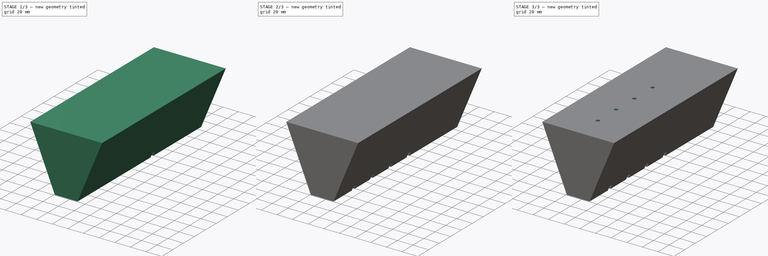
[diagram: build sequence overview — one tinted view per stage of 3, left to right]
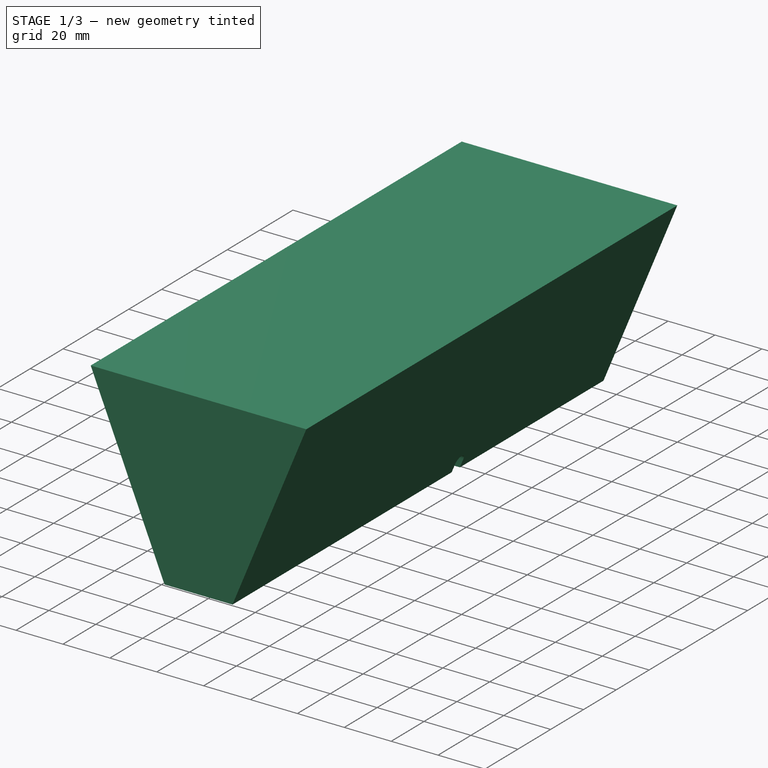
[diagram: stage 1 of 3 — iso view after this stage's code; geometry added in this stage tinted green]
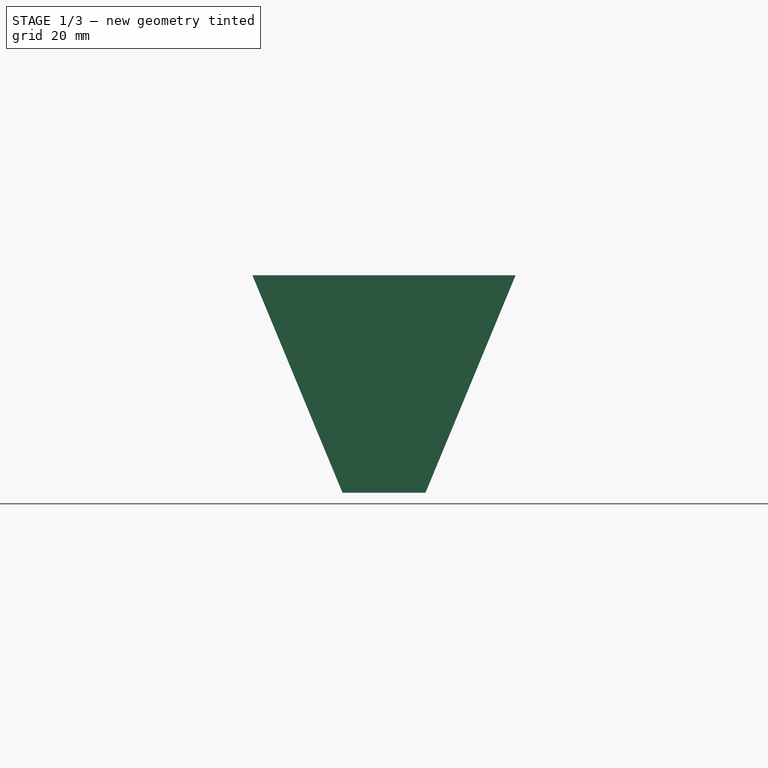
[diagram: stage 1 of 3 — front view after this stage's code; geometry added in this stage tinted green]
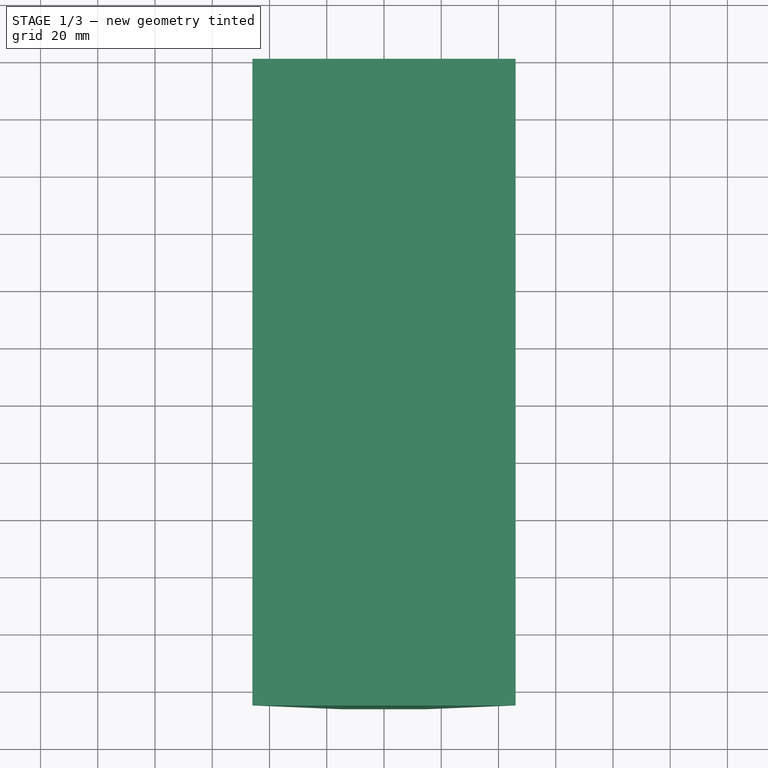
[diagram: stage 1 of 3 — top view after this stage's code; geometry added in this stage tinted green]
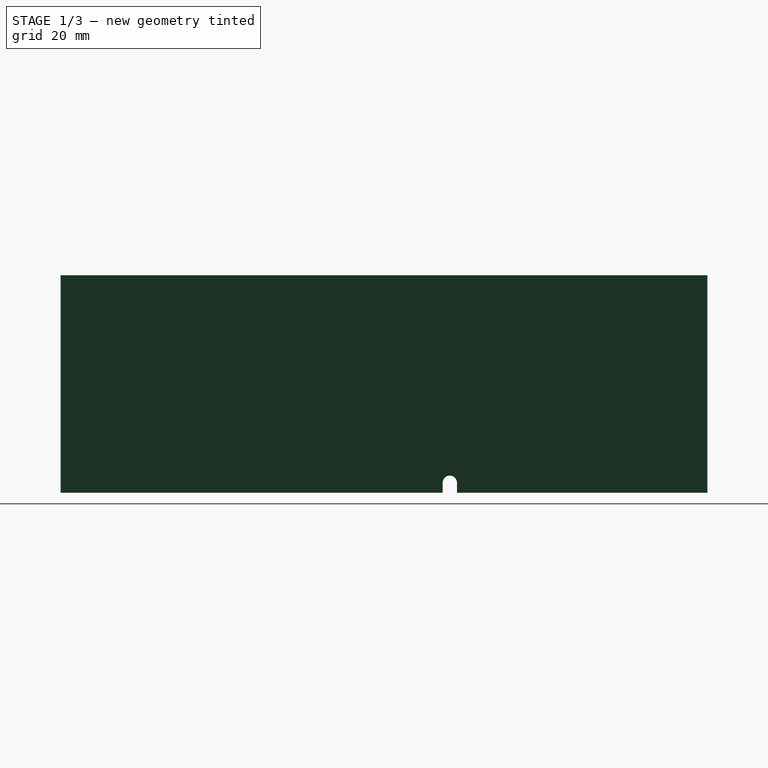
[diagram: stage 1 of 3 — right view after this stage's code; geometry added in this stage tinted green]
FCSTD DOCUMENT  (FreeCAD 1.0R39319 (Git))
Label: OCT-CHBRK-AA
License: All rights reserved
LicenseURL: https://en.wikipedia.org/wiki/All_rights_reserved
objects: Sketcher::SketchObject×3, PartDesign::LinearPattern×2, PartDesign::Body×2, App::Link×1, PartDesign::Pad×1, PartDesign::Plane×1, PartDesign::Pocket×1, PartDesign::FeatureBase×1, PartDesign::Hole×1
note: 24 computed .brp shape members not serialized (recipe doc carries the construction recipe); baked Part::Feature solids carry a one-line shape summary decoded from their .brp
EXTERNAL_REF file=../master.FCStd obj=Spreadsheet

FEATURE [App::Link] Link  label="dims"
  LinkedObject = -> <external ../master.FCStd>#Spreadsheet
FEATURE [Sketcher::SketchObject] Sketch
  ArcFitTolerance = 1e-06
  AttachmentSupport = -> [XZ_Plane]
  FullyConstrained = true
  MakeInternals = false
  MapMode = 5
  Placement = pos=(0,0,0) rot=(1,0,0;1.5708rad)
  expr: Constraints[31] = <<dims>>.iwChamber / 2
  expr: Constraints[32] = <<dims>>.owChamber
  sketch-geometry (13):
    g0: LineSegment StartX=-14.4975 StartY=35 StartZ=0 EndX=14.4975 EndY=35 EndZ=0
    g1: LineSegment StartX=14.4975 StartY=35 StartZ=0 EndX=45.9777 EndY=111 EndZ=0
    g2: LineSegment StartX=-45.9777 StartY=111 StartZ=0 EndX=-14.4975 EndY=35 EndZ=0
    g3: LineSegment [constr] StartX=-45.9777 StartY=111 StartZ=0 EndX=-111 EndY=45.9777 EndZ=0
    g4: LineSegment [constr] StartX=-111 StartY=45.9777 StartZ=0 EndX=-111 EndY=-45.9777 EndZ=0
    g5: LineSegment [constr] StartX=-111 StartY=-45.9777 StartZ=0 EndX=-45.9777 EndY=-111 EndZ=0
    g6: LineSegment [constr] StartX=-45.9777 StartY=-111 StartZ=0 EndX=45.9777 EndY=-111 EndZ=0
    g7: LineSegment [constr] StartX=45.9777 StartY=-111 StartZ=0 EndX=111 EndY=-45.9777 EndZ=0
    g8: LineSegment [constr] StartX=111 StartY=-45.9777 StartZ=0 EndX=111 EndY=45.9777 EndZ=0
    g9: LineSegment [constr] StartX=111 StartY=45.9777 StartZ=0 EndX=45.9777 EndY=111 EndZ=0
    g10: LineSegment StartX=45.9777 StartY=111 StartZ=0 EndX=-45.9777 EndY=111 EndZ=0
    g11: Circle [constr] CenterX=0 CenterY=0 CenterZ=0 NormalX=0 NormalY=0 NormalZ=1 AngleXU=0 Radius=120.146
    g12: LineSegment [constr] StartX=0 StartY=0 StartZ=0 EndX=14.4975 EndY=35 EndZ=0
  constraints (30):
    c: Horizontal(g0)
    c: Coincident(g0,g1)
    c: Coincident(g2,g0)
    c: Coincident(g3,g4)
    c: Coincident(g4,g5)
    c: Coincident(g5,g6)
    c: Coincident(g6,g7)
    c: Coincident(g7,g8)
    c: Coincident(g8,g9)
    c: Coincident(g9,g10)
    c: Coincident(g10,g3)
    c: Equal(g3, g4-g10) x7
    c: PointOnObject(g3,g11)
    c: PointOnObject(g4,g11)
    c: PointOnObject(g5,g11)
    c: PointOnObject(g6,g11)
    c: PointOnObject(g7,g11)
    c: PointOnObject(g8,g11)
    c: PointOnObject(g9,g11)
    c: PointOnObject(g10,g11)
    c: Coincident(g11,g-1)
    c: Horizontal(g10)
    c: Coincident(g1,g9)
    c: Coincident(g2,g3)
    c: Equal(g1,g2)
    c: DistanceY(g11,g0) = 35
    c: DistanceY(g5,g2) = 222
    c: Coincident(g12,g11)
    c: Coincident(g12,g0)
    c: Parallel(g12,g1)
FEATURE [PartDesign::Pad] Pad
  Direction = (0,-1,2e-16)
  Length = 226
  Length2 = 10
  Placement = pos=(0,0,0) rot=(1,0,0;1.5708rad)
  Profile = -> Sketch
  ReferenceAxis = -> Sketch [N_Axis]
  Refine = true
  Suppressed = false
  Type = 0
  expr: Length = <<dims>>.hcWall
FEATURE [PartDesign::Plane] DatumPlane  label="inner wall face"
  AttachmentOffset = pos=(0,0,35) rot=(0,0,1;0rad)
  AttachmentSupport = -> [XY_Plane001]
  Length = 60
  MapMode = 5
  Placement = pos=(0,0,35) rot=(0,0,1;0rad)
  ResizeMode = 0
  Width = 60
  expr: .AttachmentOffset.Base.z = <<dims>>.iwChamber / 2
FEATURE [Sketcher::SketchObject] Sketch001
  ArcFitTolerance = 1e-06
  AttachmentSupport = -> [DatumPlane]
  FullyConstrained = true
  MakeInternals = false
  MapMode = 5
  Placement = pos=(0,0,35) rot=(0,0,1;0rad)
  sketch-geometry (1):
    g0: Circle CenterX=0 CenterY=-90 CenterZ=0 NormalX=0 NormalY=0 NormalZ=1 AngleXU=0 Radius=2
  constraints (3):
    c: PointOnObject(g0,g-2)
    c: DistanceY(g0,g-1) = 90
    c: Diameter(g0) = 4
FEATURE [Sketcher::SketchObject] Sketch003
  ArcFitTolerance = 1e-06
  AttachmentSupport = -> [YZ_Plane]
  FullyConstrained = true
  MakeInternals = false
  MapMode = 5
  Placement = pos=(0,0,0) rot=(0.57735,0.57735,0.57735;2.0944rad)
  expr: Constraints[18] = <<dims>>.iwChamber / 2
  sketch-geometry (7):
    g0: ArcOfCircle CenterX=-90 CenterY=38.5 CenterZ=0 NormalX=0 NormalY=0 NormalZ=1 AngleXU=0 Radius=2.5 StartAngle=-8.58e-13 EndAngle=3.14159
    g1: LineSegment StartX=-92.5 StartY=38.5 StartZ=0 EndX=-92.5 EndY=35 EndZ=0
    g2: LineSegment StartX=-87.5 StartY=38.5 StartZ=0 EndX=-87.5 EndY=35 EndZ=0
    g3: LineSegment StartX=-87.5 StartY=35 StartZ=0 EndX=-92.5 EndY=35 EndZ=0
    g4: Circle [constr] CenterX=-90 CenterY=38.5 CenterZ=0 NormalX=0 NormalY=0 NormalZ=1 AngleXU=0 Radius=2.5
    g5: LineSegment [constr] StartX=-90 StartY=35 StartZ=0 EndX=-90 EndY=36 EndZ=0
    g6: LineSegment [constr] StartX=-90 StartY=38.5 StartZ=0 EndX=0 EndY=38.5 EndZ=0
  constraints (19):
    c: Coincident(g3,g2)
    c: Coincident(g3,g1)
    c: Horizontal(g3)
    c: Tangent(g2,g0) = 1.5708
    c: Tangent(g1,g0) = -1.5708
    c: Vertical(g1)
    c: Vertical(g2)
    c: Coincident(g4,g0)
    c: Equal(g4,g0)
    c: Symmetric(g3,g3,g5)
    c: PointOnObject(g5,g4)
    c: Vertical(g5)
    c: DistanceY(g5,g5) = 1
    c: Diameter(g4) = 5
    c: Coincident(g6,g0)
    c: PointOnObject(g6,g-2)
    c: Horizontal(g6)
    c: DistanceX(g6,g6) = 90
    c: DistanceY(g-1,g2) = 35
FEATURE [PartDesign::Pocket] Pocket001
  BaseFeature = -> Pad
  Direction = (-1,0,0)
  Length = 5
  Length2 = 5
  Midplane = true
  Placement = pos=(0,0,0) rot=(1,0,0;1.5708rad)
  Profile = -> Sketch003
  ReferenceAxis = -> Sketch003 [N_Axis]
  Refine = true
  Suppressed = false
  Type = 1
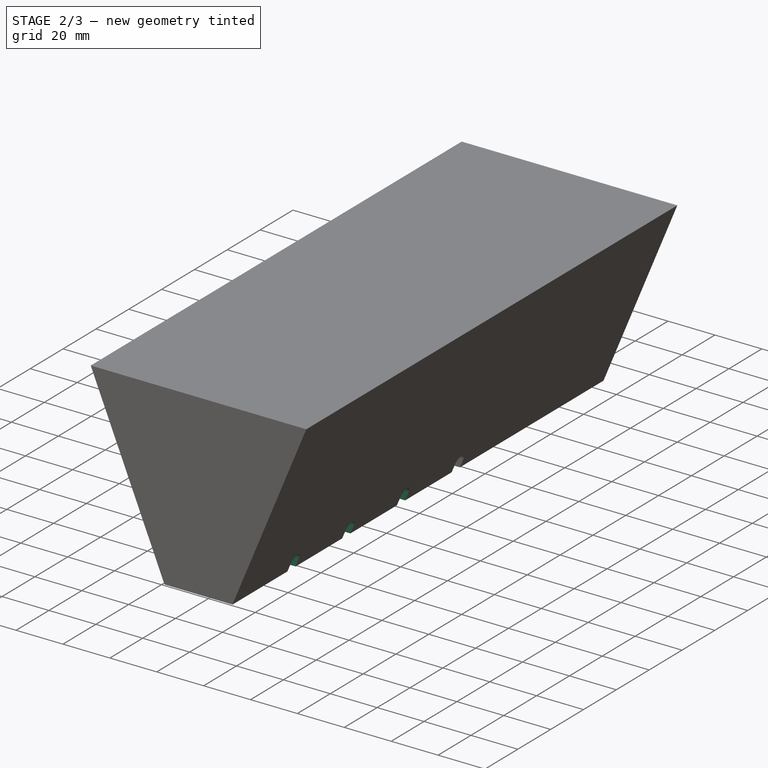
[diagram: stage 2 of 3 — iso view after this stage's code; geometry added in this stage tinted green]
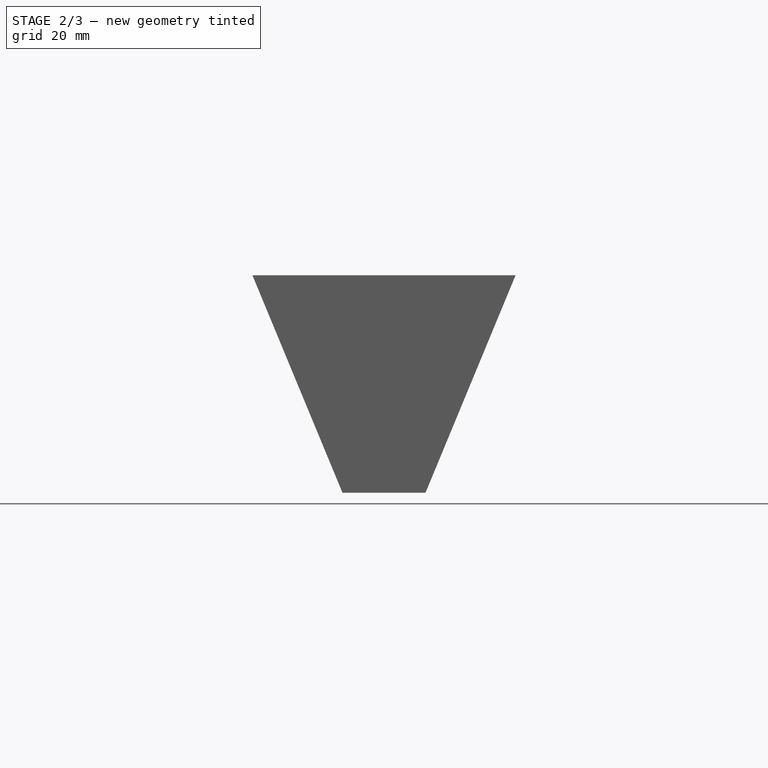
[diagram: stage 2 of 3 — front view after this stage's code; geometry added in this stage tinted green]
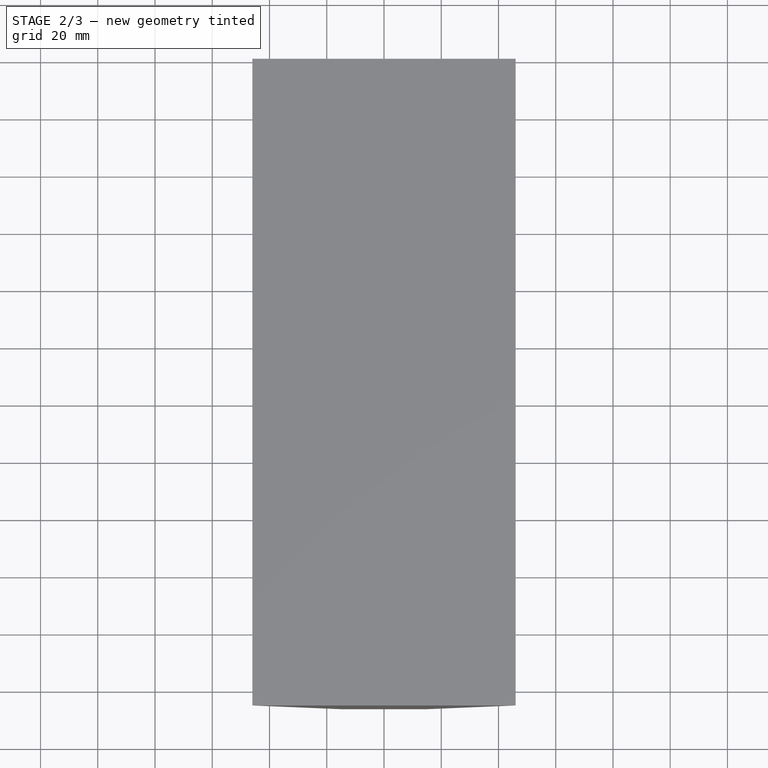
[diagram: stage 2 of 3 — top view after this stage's code; geometry added in this stage tinted green]
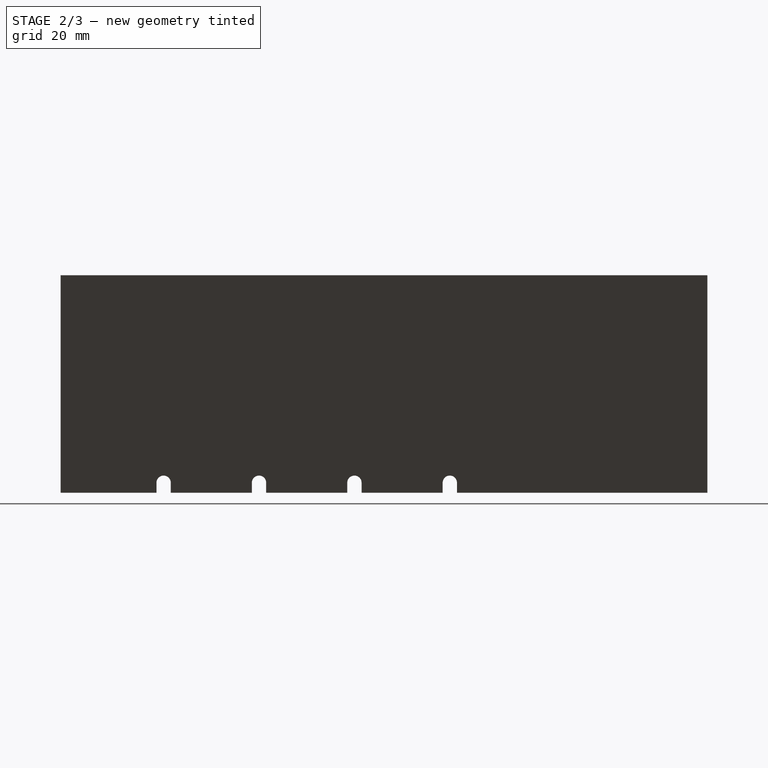
[diagram: stage 2 of 3 — right view after this stage's code; geometry added in this stage tinted green]
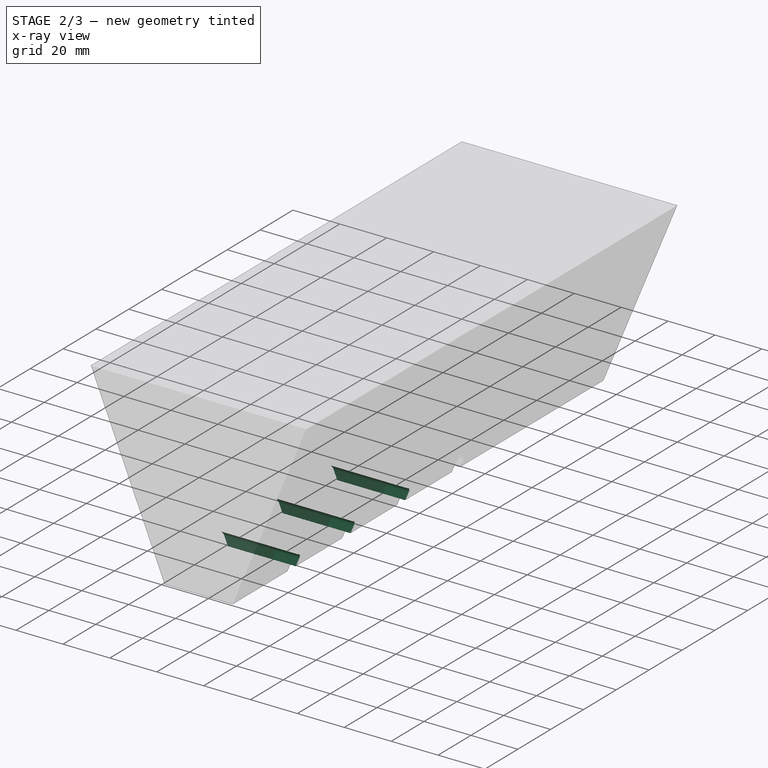
[diagram: stage 2 of 3 — x-ray composite at the iso view; earlier geometry ghosted, this stage's added geometry solid]
FEATURE [PartDesign::LinearPattern] LinearPattern001
  BaseFeature = -> Pocket001
  Direction = -> Y_Axis
  Length = 100
  Mode = 0
  Occurrences = 4
  Offset = 33.3333
  Originals = -> [Pocket001]
  Placement = pos=(0,0,0) rot=(1,0,0;1.5708rad)
  Refine = true
  Reversed = true
  Suppressed = false
  TransformMode = 0
FEATURE [PartDesign::Body] Body  label="alt A"
  AllowCompound = false
  Group = -> [Sketch,Pad,Sketch003,Pocket001,LinearPattern001]
  Origin = -> Origin
  Tip = -> LinearPattern001
FEATURE [PartDesign::FeatureBase] Clone
  BaseFeature = -> Body
  Suppressed = false
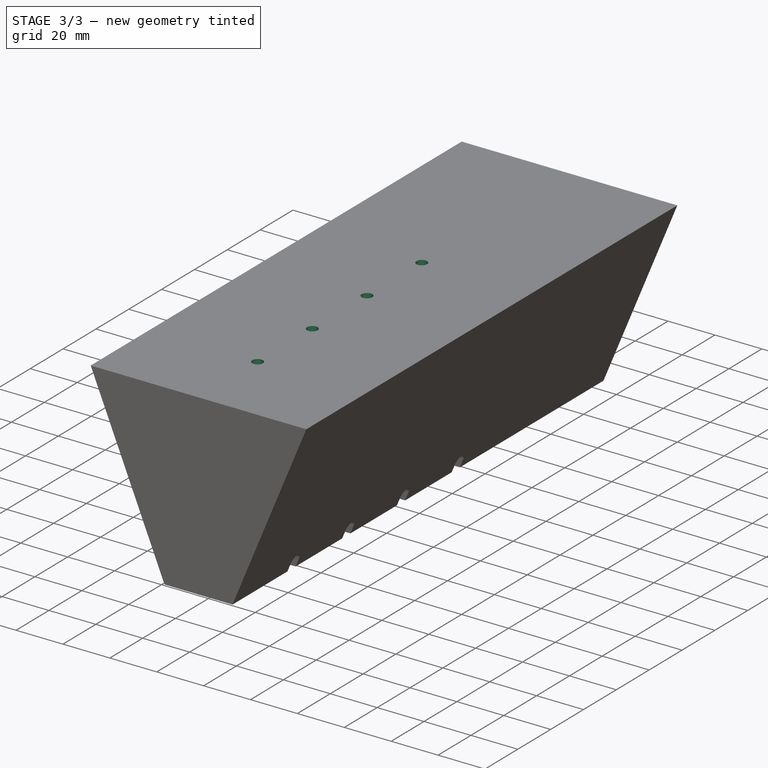
[diagram: stage 3 of 3 — iso view after this stage's code; geometry added in this stage tinted green]
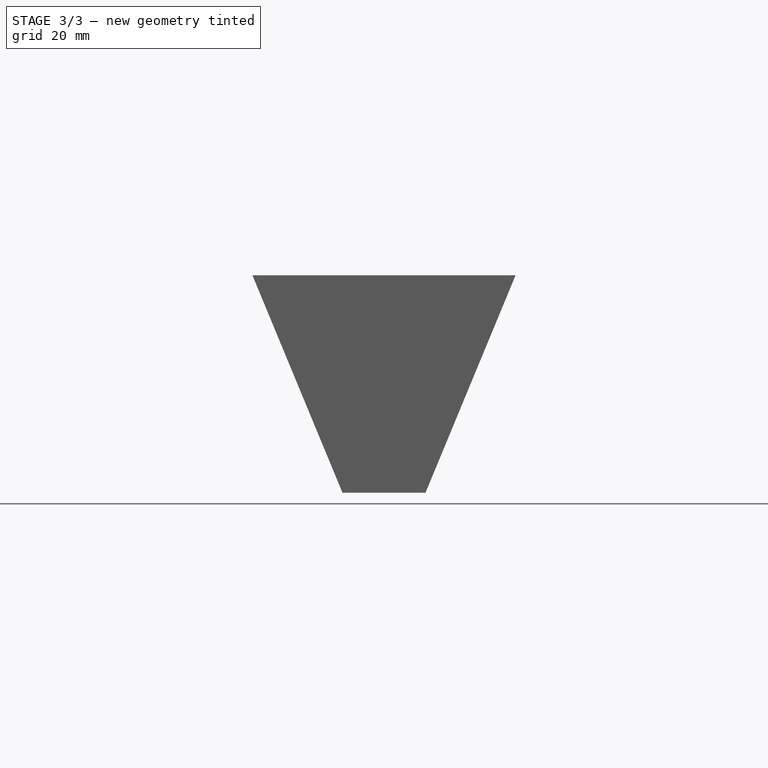
[diagram: stage 3 of 3 — front view after this stage's code; geometry added in this stage tinted green]
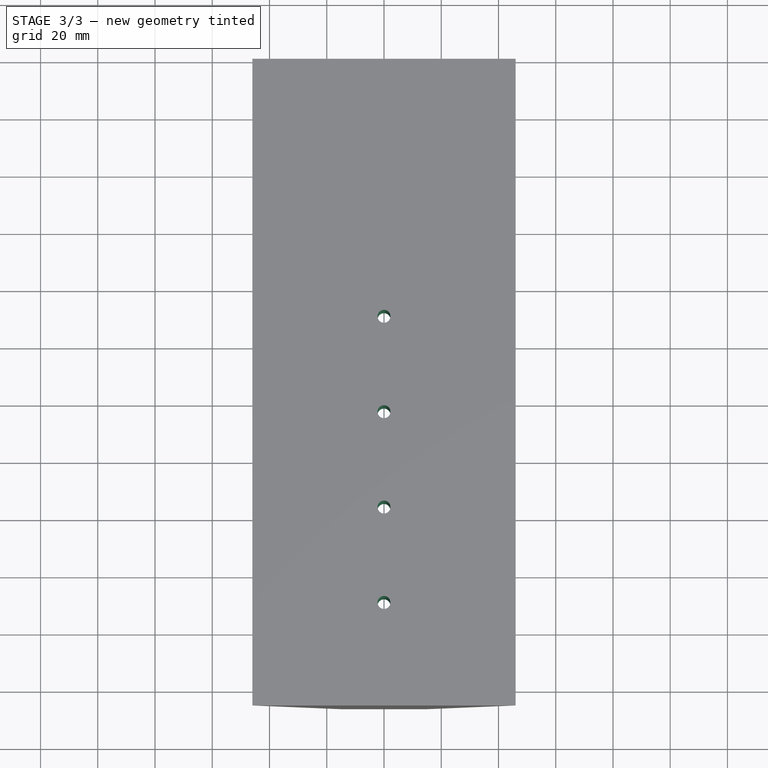
[diagram: stage 3 of 3 — top view after this stage's code; geometry added in this stage tinted green]
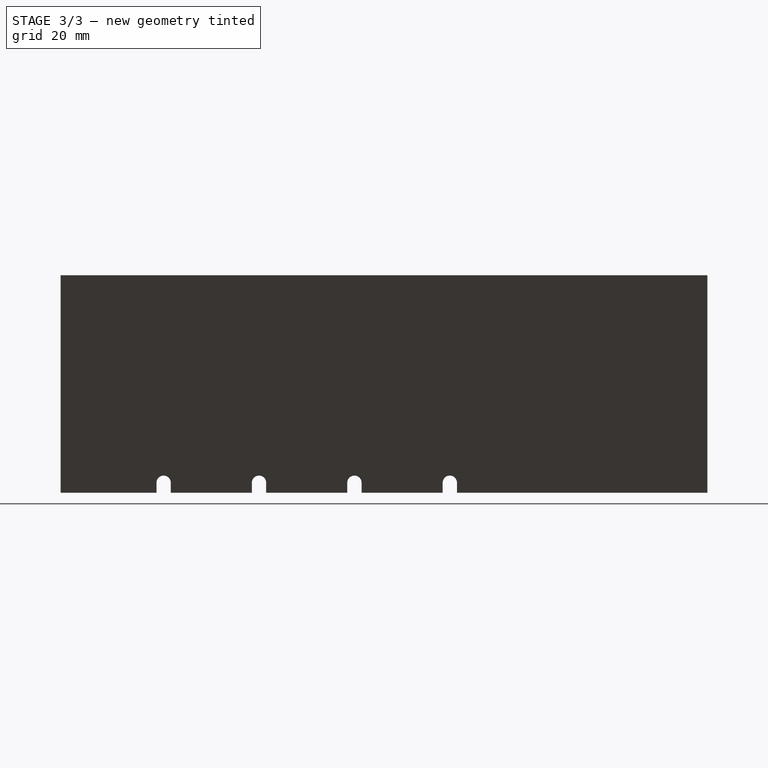
[diagram: stage 3 of 3 — right view after this stage's code; geometry added in this stage tinted green]
FEATURE [PartDesign::Hole] Hole  label="terminal hole"
  BaseFeature = -> Clone
  CustomThreadClearance = 0
  Depth = 516.219
  DepthType = 1
  Diameter = 4.5
  DrillForDepth = false
  DrillPoint = 1
  DrillPointAngle = 118
  HoleCutCountersinkAngle = 90
  HoleCutCustomValues = false
  HoleCutDepth = 8
  HoleCutDiameter = 10
  HoleCutType = 1
  ModelThread = false
  Profile = -> Sketch001
  Refine = true
  Reversed = true
  Suppressed = false
  Tapered = false
  TaperedAngle = 90
  ThreadClass = 0
  ThreadDepth = 516.219
  ThreadDepthType = 0
  ThreadDirection = 0
  ThreadFit = 0
  ThreadSize = 11
  ThreadType = 1
  Threaded = false
  UseCustomThreadClearance = false
FEATURE [PartDesign::LinearPattern] LinearPattern
  BaseFeature = -> Hole
  Direction = -> Y_Axis001
  Length = 100
  Mode = 0
  Occurrences = 4
  Offset = 33.3333
  Originals = -> [Hole]
  Refine = true
  Reversed = true
  Suppressed = false
  TransformMode = 0
FEATURE [PartDesign::Body] Body001  label="alt B"
  AllowCompound = false
  Group = -> [Clone,DatumPlane,Sketch001,Hole,LinearPattern]
  Origin = -> Origin001
  Tip = -> LinearPattern
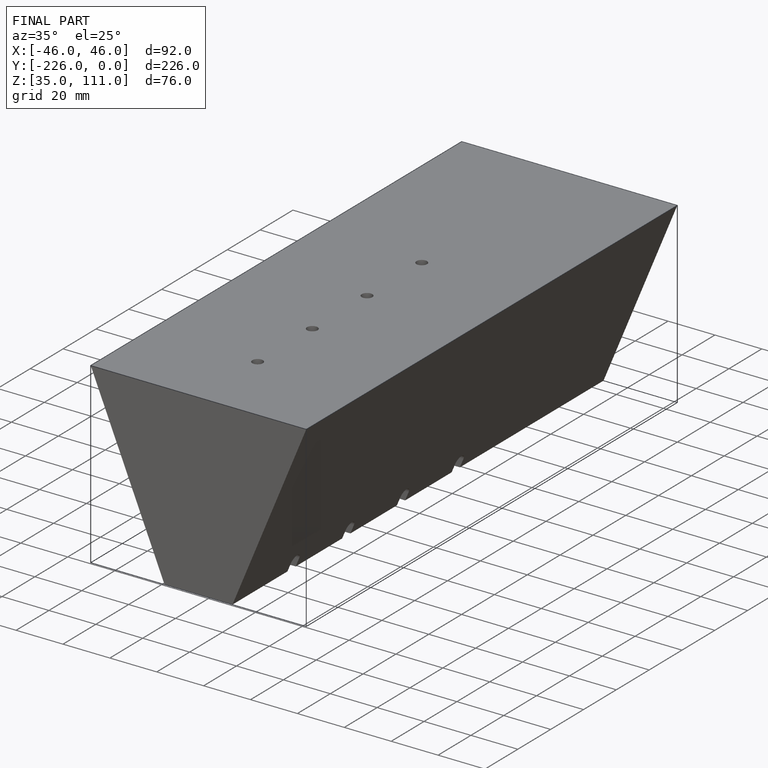
[diagram: finished part — iso view with bounding-box wireframe]
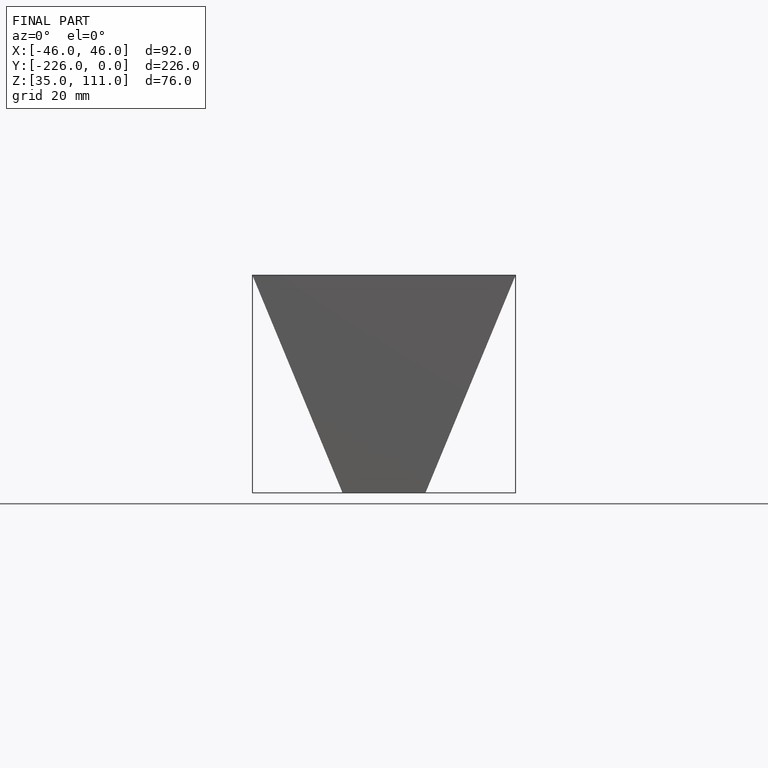
[diagram: finished part — front view with bounding-box wireframe]
